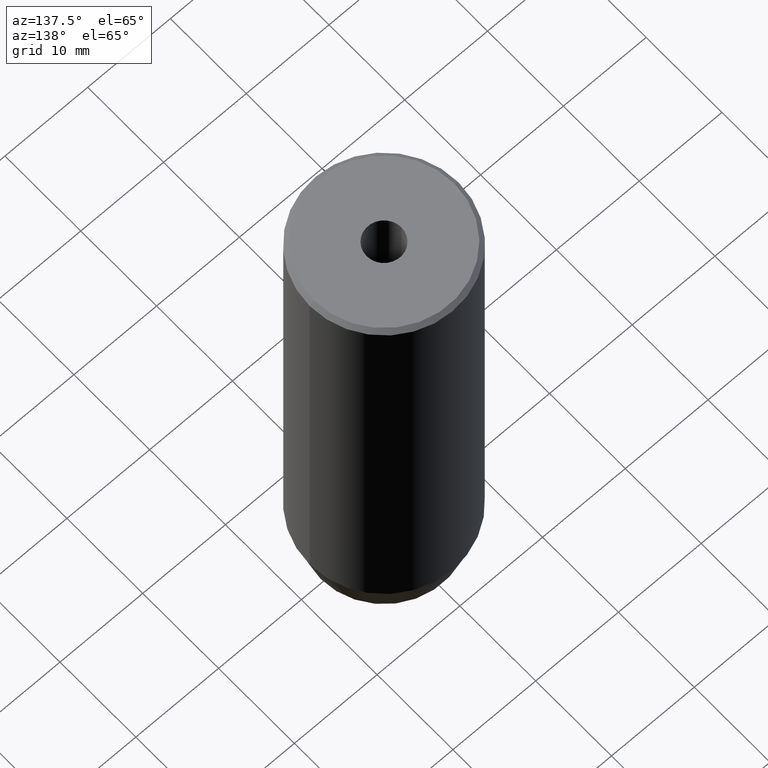
[diagram: clean part render]
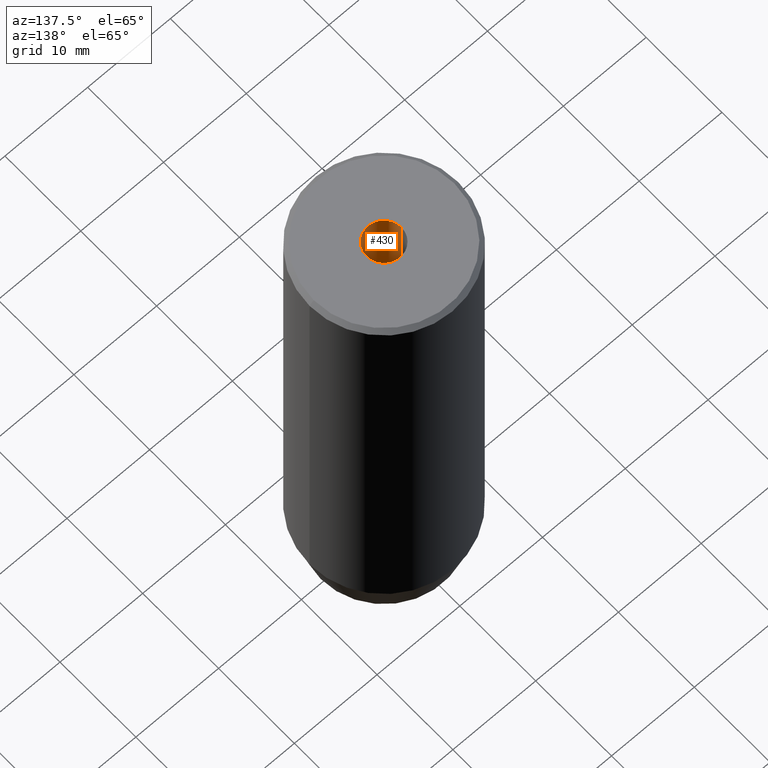
[diagram: same view with one face highlighted and labeled with its STEP entity id]
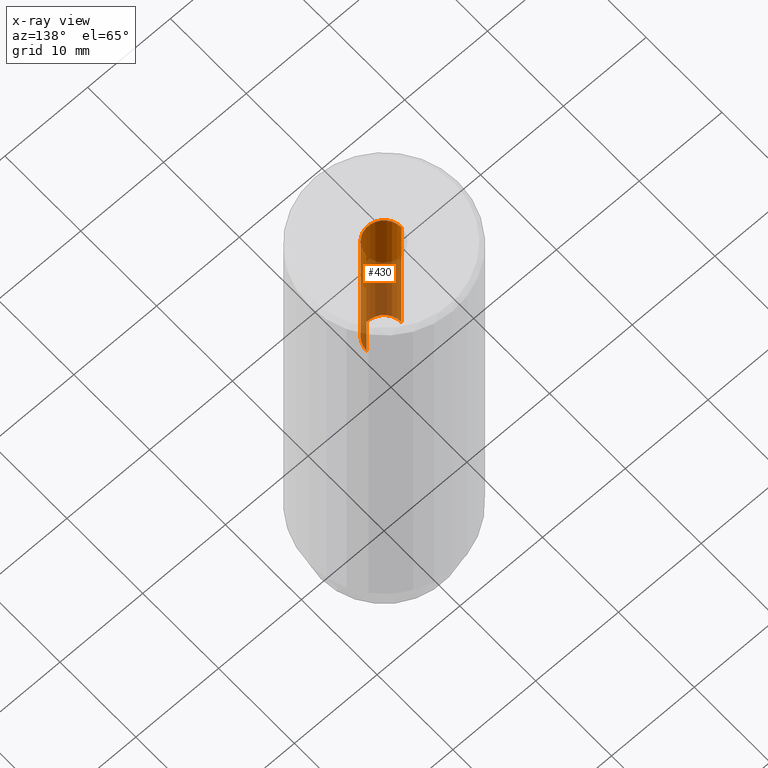
[diagram: x-ray of the same camera — body ghosted, the highlighted face saturated]
A machine part, auxiliary view. The second image highlights one B-rep face of the part: STEP entity #430.
The next image is the same camera in x-ray: the body ghosted, the highlighted face saturated — about 58% of this face is hidden behind the body in this view.
In plain terms, the highlighted cylindrical surface (edge-blend (fillet) strip) has radius 2.1 mm, axis along (-0, -0, 1).
Its self-contained STEP definition (entity closure, byte-faithful):
#5 = LINE ( 'NONE', #278, #68 ) ;
#10 = CIRCLE ( 'NONE', #328, 2.099999999999998757 ) ;
#27 = CARTESIAN_POINT ( 'NONE',  ( -2.099999999999998757, 2.571758278209440478E-16, -1.990051048614449116E-16 ) ) ;
#38 = EDGE_CURVE ( 'NONE', #332, #73, #10, .T. ) ;
#54 = VERTEX_POINT ( 'NONE', #540 ) ;
#62 = ORIENTED_EDGE ( 'NONE', *, *, #252, .F. ) ;
#68 = VECTOR ( 'NONE', #175, 1000.000000000000000 ) ;
#73 = VERTEX_POINT ( 'NONE', #224 ) ;
#95 = CARTESIAN_POINT ( 'NONE',  ( 0.000000000000000000, 0.000000000000000000, 0.000000000000000000 ) ) ;
#101 = DIRECTION ( 'NONE',  ( -0.000000000000000000, -0.000000000000000000, 1.000000000000000000 ) ) ;
#125 = EDGE_CURVE ( 'NONE', #394, #54, #499, .T. ) ;
#164 = DIRECTION ( 'NONE',  ( 1.000000000000000000, 0.000000000000000000, 0.000000000000000000 ) ) ;
#175 = DIRECTION ( 'NONE',  ( -0.000000000000000000, -0.000000000000000000, 1.000000000000000000 ) ) ;
#208 = ORIENTED_EDGE ( 'NONE', *, *, #125, .F. ) ;
#210 = CARTESIAN_POINT ( 'NONE',  ( 0.000000000000000000, 0.000000000000000000, -1.990051048614449116E-16 ) ) ;
#224 = CARTESIAN_POINT ( 'NONE',  ( 2.099999999999998757, 0.000000000000000000, -1.990051048614449116E-16 ) ) ;
#252 = EDGE_CURVE ( 'NONE', #54, #73, #5, .T. ) ;
#253 = AXIS2_PLACEMENT_3D ( 'NONE', #418, #383, #164 ) ;
#278 = CARTESIAN_POINT ( 'NONE',  ( 2.099999999999997424, 0.000000000000000000, 0.000000000000000000 ) ) ;
#328 = AXIS2_PLACEMENT_3D ( 'NONE', #210, #341, #443 ) ;
#332 = VERTEX_POINT ( 'NONE', #27 ) ;
#338 = EDGE_CURVE ( 'NONE', #394, #332, #390, .T. ) ;
#341 = DIRECTION ( 'NONE',  ( -0.000000000000000000, -0.000000000000000000, 1.000000000000000000 ) ) ;
#369 = AXIS2_PLACEMENT_3D ( 'NONE', #95, #101, #416 ) ;
#370 = CYLINDRICAL_SURFACE ( 'NONE', #369, 2.099999999999997424 ) ;
#374 = ORIENTED_EDGE ( 'NONE', *, *, #38, .T. ) ;
#376 = FACE_OUTER_BOUND ( 'NONE', #494, .T. ) ;
#383 = DIRECTION ( 'NONE',  ( -0.000000000000000000, -0.000000000000000000, 1.000000000000000000 ) ) ;
#390 = LINE ( 'NONE', #392, #426 ) ;
#392 = CARTESIAN_POINT ( 'NONE',  ( -2.099999999999997424, 2.571758278209438506E-16, 0.000000000000000000 ) ) ;
#394 = VERTEX_POINT ( 'NONE', #459 ) ;
#408 = ORIENTED_EDGE ( 'NONE', *, *, #338, .T. ) ;
#416 = DIRECTION ( 'NONE',  ( 1.000000000000000000, 0.000000000000000000, 0.000000000000000000 ) ) ;
#418 = CARTESIAN_POINT ( 'NONE',  ( 0.000000000000000000, 0.000000000000000000, -20.00000000000000000 ) ) ;
#426 = VECTOR ( 'NONE', #569, 1000.000000000000000 ) ;
#430 = ADVANCED_FACE ( 'NONE', ( #376 ), #370, .F. ) ;
#443 = DIRECTION ( 'NONE',  ( 1.000000000000000000, 0.000000000000000000, 0.000000000000000000 ) ) ;
#459 = CARTESIAN_POINT ( 'NONE',  ( -2.099999999999996092, 2.571758278209436534E-16, -20.00000000000000000 ) ) ;
#494 = EDGE_LOOP ( 'NONE', ( #208, #408, #374, #62 ) ) ;
#499 = CIRCLE ( 'NONE', #253, 2.099999999999996092 ) ;
#540 = CARTESIAN_POINT ( 'NONE',  ( 2.099999999999996092, 0.000000000000000000, -20.00000000000000000 ) ) ;
#569 = DIRECTION ( 'NONE',  ( -0.000000000000000000, -0.000000000000000000, 1.000000000000000000 ) ) ;